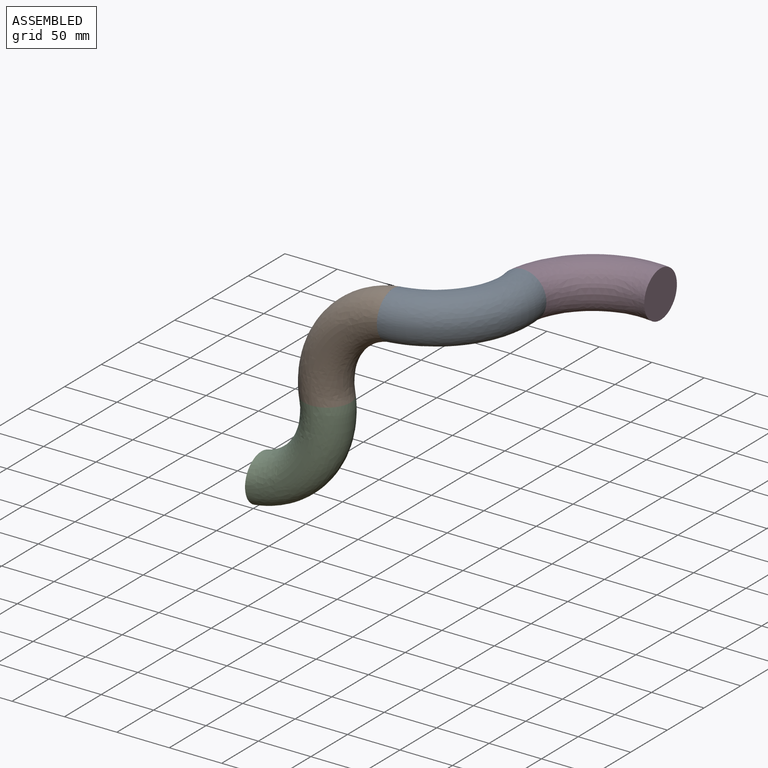
[diagram: assembled view]
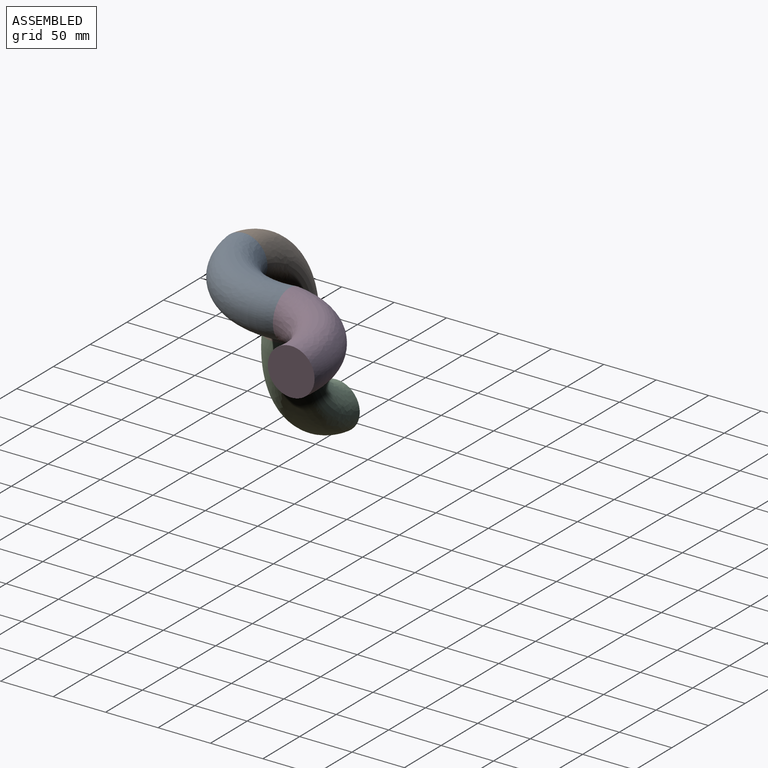
[diagram: assembled view, second angle]
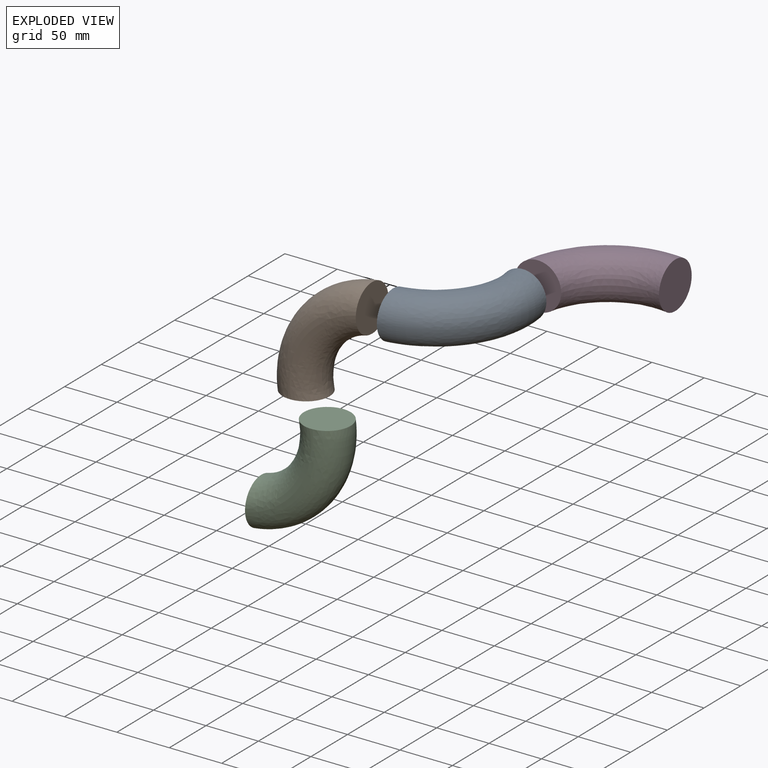
[diagram: exploded view]
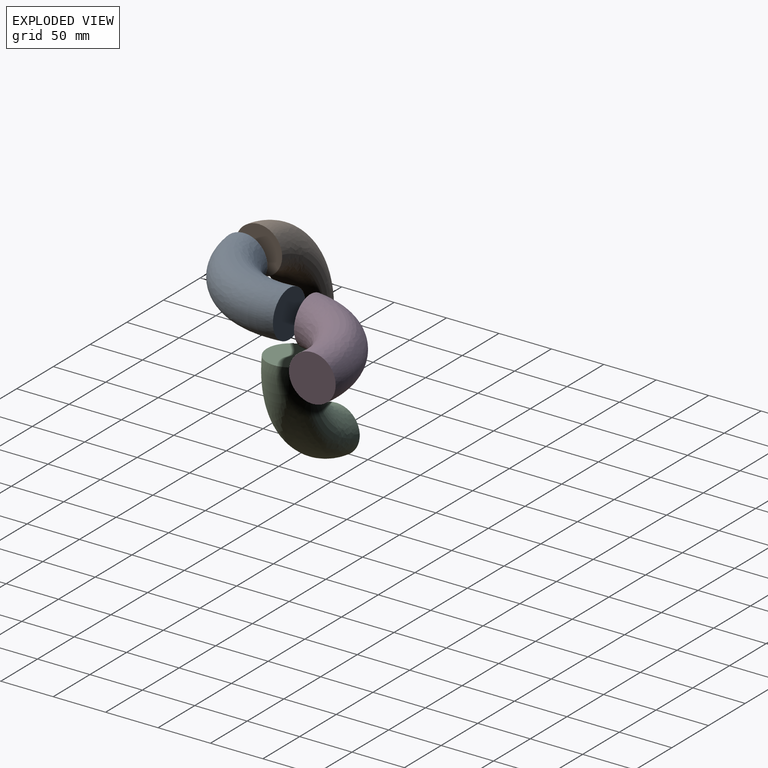
[diagram: exploded view, second angle]
ASSEMBLY  parts=4 mates=3
PART A: 3 faces, bbox 92.3x89.1x109.4 mm
  f0: plane 44.57x44.57mm, normal (0,0,-1), area 1560.4mm2, adj f2
  f1: plane 44.57x44.57mm, normal (1,0,0), area 1560.4mm2, adj f2
  f2: bspline ~109.41x92.27mm, area 16653.3mm2, adj f0,f1
PART B: same geometry as A
PART C: same geometry as A
PART D: same geometry as A
PLACE A rot(axis=(0,-0.71,0.71),180deg) t=(204.89,53.57,118.72)mm
PLACE B t=(79.14,-33.55,31.6)mm
PLACE C rot(axis=(0,1,0),180deg) t=(79.14,-33.55,31.6)mm
PLACE D rot(axis=(0.58,-0.58,-0.58),120deg) t=(292.01,116.45,118.72)mm
MATE revolute A.f1 <-> B.f1  axis (-1,0,0) through (142.01,-33.55,118.72)mm
MATE revolute C.f0 <-> B.f0  axis (0,0,1) through (79.14,-33.55,31.6)mm
MATE revolute D.f1 <-> A.f0  axis (0,-1,0) through (204.89,53.57,118.72)mm
